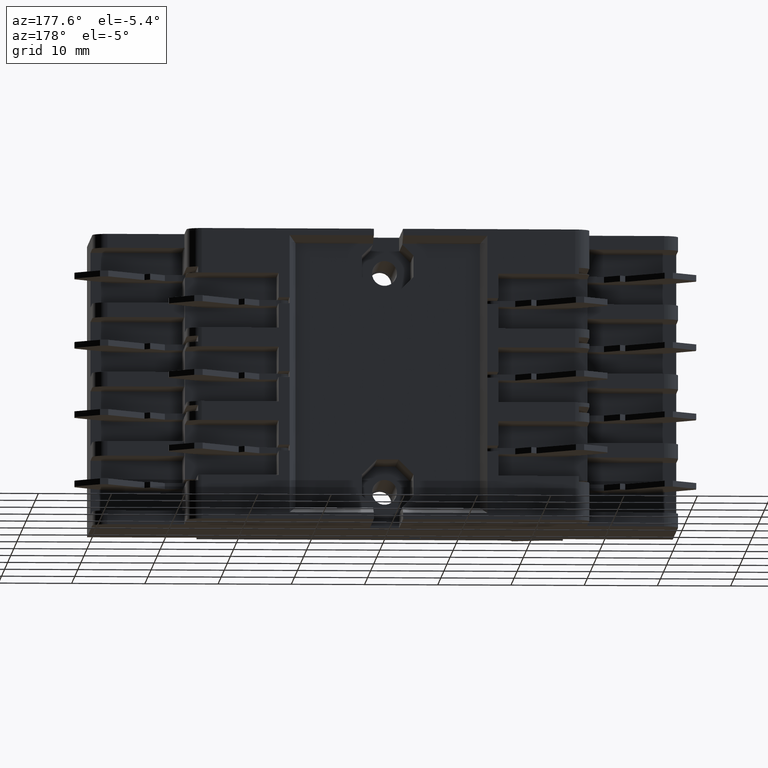
[diagram: clean part render]
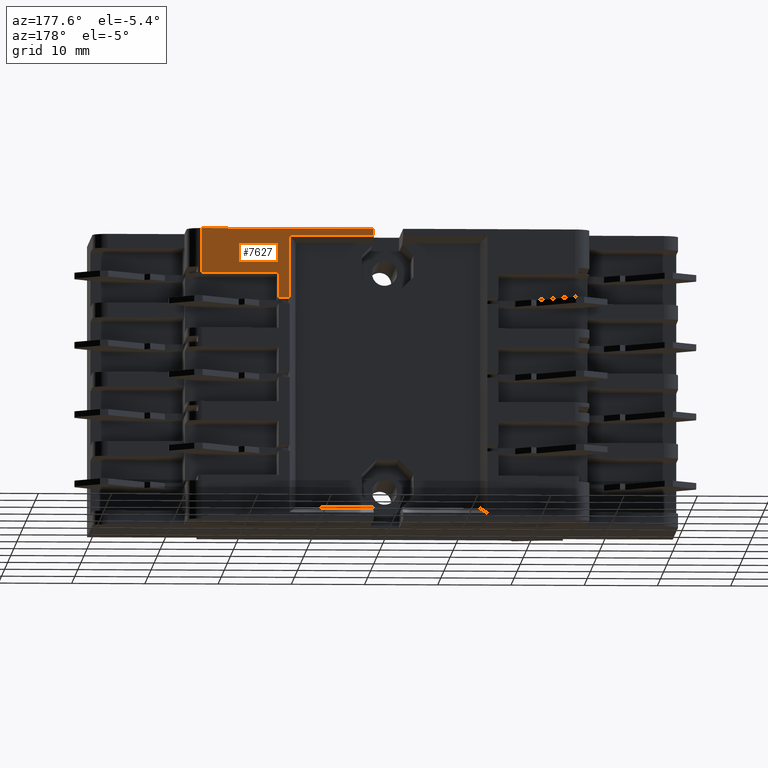
[diagram: same view with one face highlighted and labeled with its STEP entity id]
A machine part, auxiliary view. The second image highlights one B-rep face of the part: STEP entity #7627.
In plain terms, the highlighted planar face has unit normal (0, 1, 0).
Its self-contained STEP definition (entity closure, byte-faithful):
#4951=CARTESIAN_POINT('',(25.500000000000000,28.0,-6.100000000000008));
#4952=VERTEX_POINT('',#4951);
#4960=CARTESIAN_POINT('',(25.500000000000000,28.0,0.0));
#4961=VERTEX_POINT('',#4960);
#4962=CARTESIAN_POINT('',(25.500000000000000,28.0,-6.100000000000008));
#4963=DIRECTION('',(0.0,0.0,1.0));
#4964=VECTOR('',#4963,6.100000000000008);
#4965=LINE('',#4962,#4964);
#4966=EDGE_CURVE('',#4952,#4961,#4965,.T.);
#5432=CARTESIAN_POINT('',(14.999999999999991,28.0,-9.450000000000745));
#5433=VERTEX_POINT('',#5432);
#5440=CARTESIAN_POINT('',(15.0,28.0,-6.100000000000000));
#5441=VERTEX_POINT('',#5440);
#5442=CARTESIAN_POINT('',(15.0,28.0,-6.100000000000000));
#5443=DIRECTION('',(0.0,0.0,-1.0));
#5444=VECTOR('',#5443,3.350000000000746);
#5445=LINE('',#5442,#5444);
#5446=EDGE_CURVE('',#5441,#5433,#5445,.T.);
#5472=CARTESIAN_POINT('',(25.500000000000000,28.0,-6.100000000000007));
#5473=DIRECTION('',(-1.0,0.0,0.0));
#5474=VECTOR('',#5473,10.500000000000000);
#5475=LINE('',#5472,#5474);
#5476=EDGE_CURVE('',#4952,#5441,#5475,.T.);
#7477=CARTESIAN_POINT('',(13.500000000000005,28.0,-0.899999999999999));
#7478=VERTEX_POINT('',#7477);
#7485=CARTESIAN_POINT('',(13.499999999999996,28.0,-9.450000000000745));
#7486=VERTEX_POINT('',#7485);
#7487=CARTESIAN_POINT('',(13.500000000000002,28.0,-9.450000000000745));
#7488=DIRECTION('',(0.0,0.0,1.0));
#7489=VECTOR('',#7488,8.550000000000747);
#7490=LINE('',#7487,#7489);
#7491=EDGE_CURVE('',#7486,#7478,#7490,.T.);
#7588=CARTESIAN_POINT('',(27.500000000000000,28.0,0.0));
#7589=DIRECTION('',(0.0,1.0,0.0));
#7590=DIRECTION('',(0.0,0.0,1.0));
#7591=AXIS2_PLACEMENT_3D('',#7588,#7589,#7590);
#7592=PLANE('',#7591);
#7593=CARTESIAN_POINT('',(14.999999999999991,28.0,-9.450000000000745));
#7594=DIRECTION('',(-1.0,0.0,0.0));
#7595=VECTOR('',#7594,1.499999999999995);
#7596=LINE('',#7593,#7595);
#7597=EDGE_CURVE('',#5433,#7486,#7596,.T.);
#7598=ORIENTED_EDGE('',*,*,#7597,.T.);
#7599=ORIENTED_EDGE('',*,*,#7491,.T.);
#7600=CARTESIAN_POINT('',(1.999999999999997,28.0,-0.899999999999999));
#7601=VERTEX_POINT('',#7600);
#7602=CARTESIAN_POINT('',(13.500000000000005,28.0,-0.899999999999999));
#7603=DIRECTION('',(-1.0,0.0,0.0));
#7604=VECTOR('',#7603,11.500000000000007);
#7605=LINE('',#7602,#7604);
#7606=EDGE_CURVE('',#7478,#7601,#7605,.T.);
#7607=ORIENTED_EDGE('',*,*,#7606,.T.);
#7608=CARTESIAN_POINT('',(1.999999999999997,28.0,5.450285E-033));
#7609=VERTEX_POINT('',#7608);
#7610=CARTESIAN_POINT('',(1.999999999999997,28.0,-0.899999999999999));
#7611=DIRECTION('',(0.0,0.0,1.0));
#7612=VECTOR('',#7611,0.899999999999999);
#7613=LINE('',#7610,#7612);
#7614=EDGE_CURVE('',#7601,#7609,#7613,.T.);
#7615=ORIENTED_EDGE('',*,*,#7614,.T.);
#7616=CARTESIAN_POINT('',(1.999999999999996,28.0,0.0));
#7617=DIRECTION('',(1.0,0.0,0.0));
#7618=VECTOR('',#7617,23.500000000000004);
#7619=LINE('',#7616,#7618);
#7620=EDGE_CURVE('',#7609,#4961,#7619,.T.);
#7621=ORIENTED_EDGE('',*,*,#7620,.T.);
#7622=ORIENTED_EDGE('',*,*,#4966,.F.);
#7623=ORIENTED_EDGE('',*,*,#5476,.T.);
#7624=ORIENTED_EDGE('',*,*,#5446,.T.);
#7625=EDGE_LOOP('',(#7598,#7599,#7607,#7615,#7621,#7622,#7623,#7624));
#7626=FACE_OUTER_BOUND('',#7625,.T.);
#7627=ADVANCED_FACE('',(#7626),#7592,.T.);